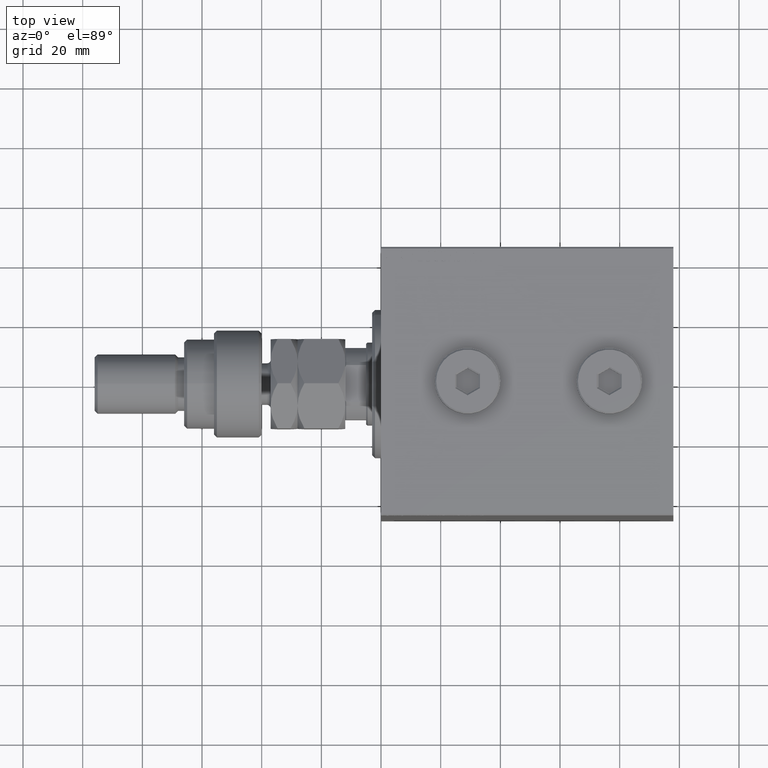
[diagram: clean part render]
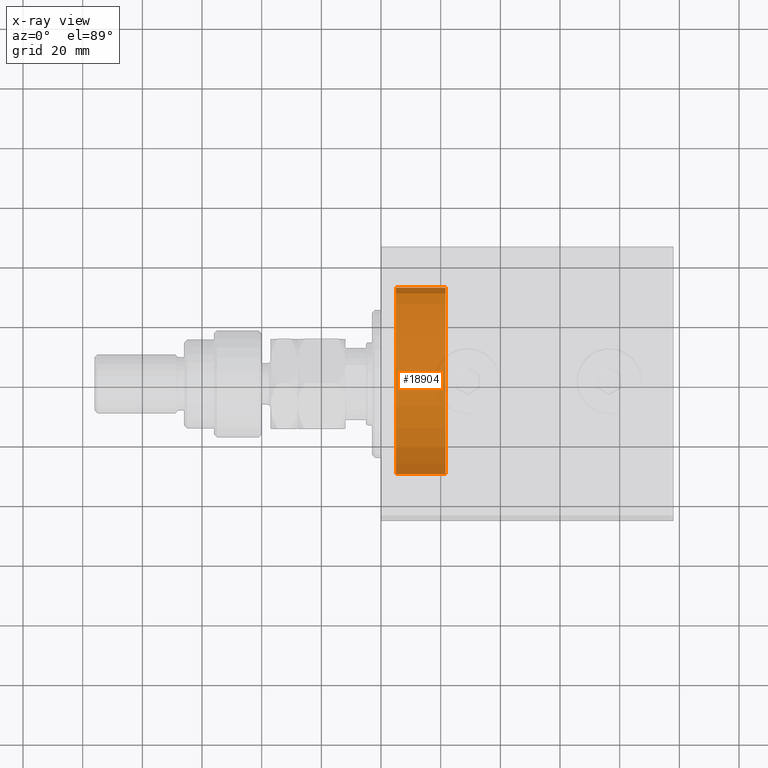
[diagram: x-ray — body ghosted, one internal face saturated and labeled with its STEP entity id]
A machine part, top view, then the same camera in x-ray: the body is ghosted and one INTERNAL B-rep face — a face not visible from any outside direction — is saturated and labeled: STEP entity #18904.
In plain terms, the highlighted cylindrical surface (partial cylindrical patch) has radius 32.5 mm, axis along (-1, 0, 0).
Its self-contained STEP definition (entity closure, byte-faithful):
#3291 = CARTESIAN_POINT ( 'NONE',  ( -5.000000000000000000, 3.980102097228897837E-15, 32.50000000000000000 ) ) ;
#4858 = FACE_OUTER_BOUND ( 'NONE', #29466, .T. ) ;
#5707 = VERTEX_POINT ( 'NONE', #16584 ) ;
#7759 = LINE ( 'NONE', #22545, #26980 ) ;
#7845 = AXIS2_PLACEMENT_3D ( 'NONE', #16513, #46083, #45603 ) ;
#7853 = EDGE_CURVE ( 'NONE', #21206, #25769, #16049, .T. ) ;
#10520 = CARTESIAN_POINT ( 'NONE',  ( -21.60000000000000142, 3.980102097228897837E-15, 32.50000000000000000 ) ) ;
#14062 = ORIENTED_EDGE ( 'NONE', *, *, #27519, .T. ) ;
#14853 = EDGE_CURVE ( 'NONE', #5707, #25769, #7759, .T. ) ;
#15701 = CARTESIAN_POINT ( 'NONE',  ( -5.000000000000000000, 0.000000000000000000, 0.000000000000000000 ) ) ;
#16049 = CIRCLE ( 'NONE', #43156, 32.50000000000000000 ) ;
#16513 = CARTESIAN_POINT ( 'NONE',  ( -21.60000000000000142, 0.000000000000000000, 0.000000000000000000 ) ) ;
#16584 = CARTESIAN_POINT ( 'NONE',  ( -21.60000000000000142, 0.000000000000000000, -32.50000000000000000 ) ) ;
#16740 = CARTESIAN_POINT ( 'NONE',  ( -5.000000000000000000, 0.000000000000000000, -32.50000000000000000 ) ) ;
#17631 = AXIS2_PLACEMENT_3D ( 'NONE', #26981, #34499, #38623 ) ;
#18904 = ADVANCED_FACE ( 'NONE', ( #4858 ), #39054, .T. ) ;
#20561 = EDGE_CURVE ( 'NONE', #30938, #5707, #33895, .T. ) ;
#21206 = VERTEX_POINT ( 'NONE', #3291 ) ;
#22545 = CARTESIAN_POINT ( 'NONE',  ( -21.60000000000000142, 0.000000000000000000, -32.50000000000000000 ) ) ;
#24563 = ORIENTED_EDGE ( 'NONE', *, *, #20561, .F. ) ;
#25305 = DIRECTION ( 'NONE',  ( 1.000000000000000000, -0.000000000000000000, -0.000000000000000000 ) ) ;
#25769 = VERTEX_POINT ( 'NONE', #16740 ) ;
#26980 = VECTOR ( 'NONE', #37358, 1000.000000000000000 ) ;
#26981 = CARTESIAN_POINT ( 'NONE',  ( -21.60000000000000142, 0.000000000000000000, 0.000000000000000000 ) ) ;
#27140 = VECTOR ( 'NONE', #25305, 1000.000000000000000 ) ;
#27519 = EDGE_CURVE ( 'NONE', #30938, #21206, #28946, .T. ) ;
#28946 = LINE ( 'NONE', #10520, #27140 ) ;
#29466 = EDGE_LOOP ( 'NONE', ( #24563, #14062, #36299, #39524 ) ) ;
#30938 = VERTEX_POINT ( 'NONE', #38588 ) ;
#33404 = DIRECTION ( 'NONE',  ( 0.000000000000000000, 0.000000000000000000, 1.000000000000000000 ) ) ;
#33895 = CIRCLE ( 'NONE', #17631, 32.50000000000000000 ) ;
#34499 = DIRECTION ( 'NONE',  ( -1.000000000000000000, 0.000000000000000000, 0.000000000000000000 ) ) ;
#36299 = ORIENTED_EDGE ( 'NONE', *, *, #7853, .T. ) ;
#37358 = DIRECTION ( 'NONE',  ( 1.000000000000000000, -0.000000000000000000, -0.000000000000000000 ) ) ;
#38588 = CARTESIAN_POINT ( 'NONE',  ( -21.60000000000000142, 3.980102097228897837E-15, 32.50000000000000000 ) ) ;
#38623 = DIRECTION ( 'NONE',  ( 0.000000000000000000, 0.000000000000000000, 1.000000000000000000 ) ) ;
#39054 = CYLINDRICAL_SURFACE ( 'NONE', #7845, 32.50000000000000000 ) ;
#39524 = ORIENTED_EDGE ( 'NONE', *, *, #14853, .F. ) ;
#40675 = DIRECTION ( 'NONE',  ( -1.000000000000000000, 0.000000000000000000, 0.000000000000000000 ) ) ;
#43156 = AXIS2_PLACEMENT_3D ( 'NONE', #15701, #40675, #33404 ) ;
#45603 = DIRECTION ( 'NONE',  ( 0.000000000000000000, 0.000000000000000000, -1.000000000000000000 ) ) ;
#46083 = DIRECTION ( 'NONE',  ( 1.000000000000000000, -0.000000000000000000, -0.000000000000000000 ) ) ;